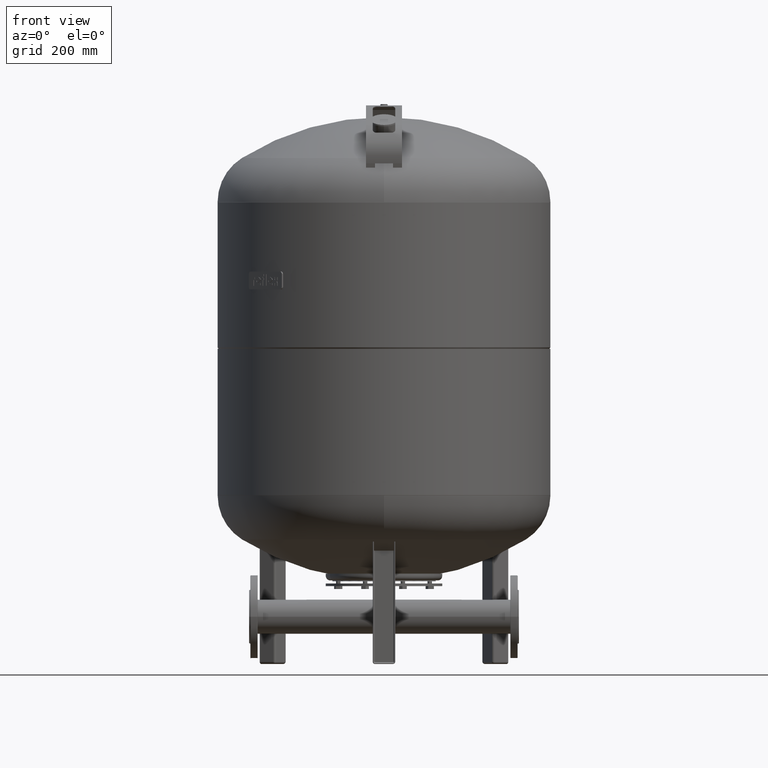
[diagram: clean part render]
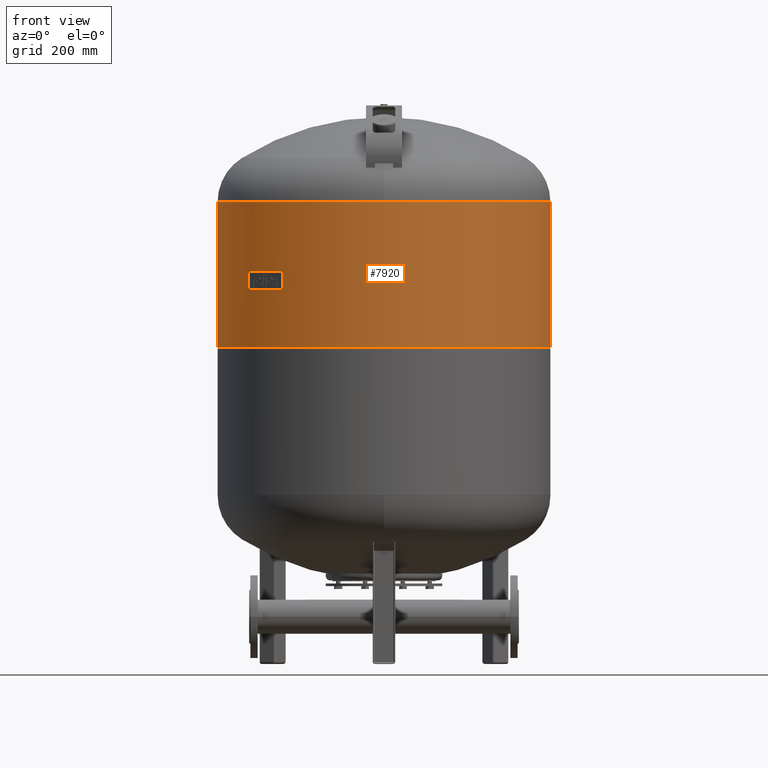
[diagram: same view with one face highlighted and labeled with its STEP entity id]
A machine part, front view. The second image highlights one B-rep face of the part: STEP entity #7920.
In plain terms, the highlighted cylindrical surface (partial cylindrical patch) has radius 370 mm, axis along (0, 0, 1).
Its self-contained STEP definition (entity closure, byte-faithful):
#7810=CARTESIAN_POINT('',(369.999999999999770,0.0,704.0));
#7811=VERTEX_POINT('',#7810);
#7820=CARTESIAN_POINT('',(-370.0,-4.531044E-014,704.0));
#7821=VERTEX_POINT('',#7820);
#7822=CARTESIAN_POINT('',(1.535702E-016,0.0,704.0));
#7823=DIRECTION('',(0.0,0.0,1.0));
#7824=DIRECTION('',(1.0,0.0,0.0));
#7825=AXIS2_PLACEMENT_3D('',#7822,#7823,#7824);
#7826=CIRCLE('',#7825,369.999999999999770);
#7827=EDGE_CURVE('',#7821,#7811,#7826,.T.);
#7889=CARTESIAN_POINT('',(1.668796E-014,0.0,1029.500000000000000));
#7890=DIRECTION('',(0.0,0.0,1.0));
#7891=DIRECTION('',(1.0,0.0,0.0));
#7892=AXIS2_PLACEMENT_3D('',#7889,#7890,#7891);
#7893=CYLINDRICAL_SURFACE('',#7892,370.0);
#7894=CARTESIAN_POINT('',(370.0,0.0,1027.0));
#7895=VERTEX_POINT('',#7894);
#7896=CARTESIAN_POINT('',(370.0,0.0,1027.0));
#7897=DIRECTION('',(0.0,0.0,-1.0));
#7898=VECTOR('',#7897,323.0);
#7899=LINE('',#7896,#7898);
#7900=EDGE_CURVE('',#7895,#7811,#7899,.T.);
#7901=ORIENTED_EDGE('',*,*,#7900,.F.);
#7902=CARTESIAN_POINT('',(-370.0,-4.531044E-014,1027.0));
#7903=VERTEX_POINT('',#7902);
#7904=CARTESIAN_POINT('',(1.668796E-014,0.0,1027.0));
#7905=DIRECTION('',(0.0,0.0,1.0));
#7906=DIRECTION('',(1.0,0.0,0.0));
#7907=AXIS2_PLACEMENT_3D('',#7904,#7905,#7906);
#7908=CIRCLE('',#7907,370.0);
#7909=EDGE_CURVE('',#7903,#7895,#7908,.T.);
#7910=ORIENTED_EDGE('',*,*,#7909,.F.);
#7911=CARTESIAN_POINT('',(-370.0,-4.531044E-014,1027.0));
#7912=DIRECTION('',(0.0,0.0,-1.0));
#7913=VECTOR('',#7912,323.0);
#7914=LINE('',#7911,#7913);
#7915=EDGE_CURVE('',#7903,#7821,#7914,.T.);
#7916=ORIENTED_EDGE('',*,*,#7915,.T.);
#7917=ORIENTED_EDGE('',*,*,#7827,.T.);
#7918=EDGE_LOOP('',(#7901,#7910,#7916,#7917));
#7919=FACE_OUTER_BOUND('',#7918,.T.);
#7920=ADVANCED_FACE('',(#7919),#7893,.T.);